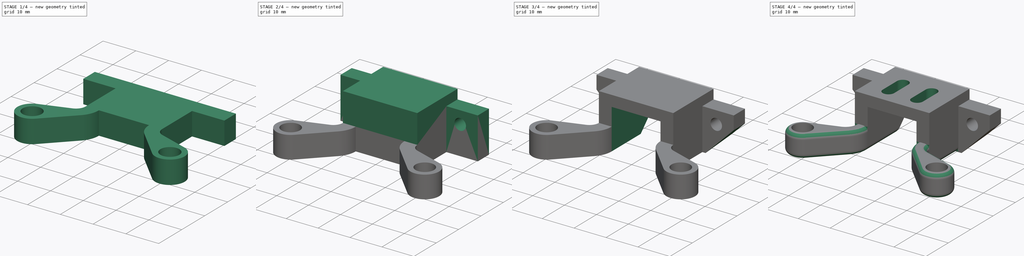
[diagram: build sequence overview — one tinted view per stage of 4, left to right]
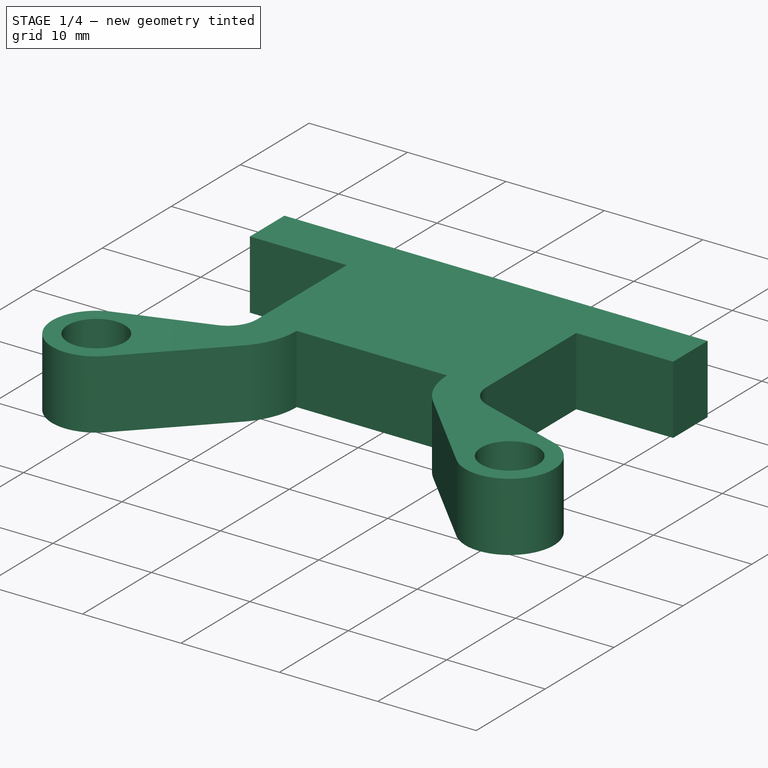
[diagram: stage 1 of 4 — iso view after this stage's code; geometry added in this stage tinted green]
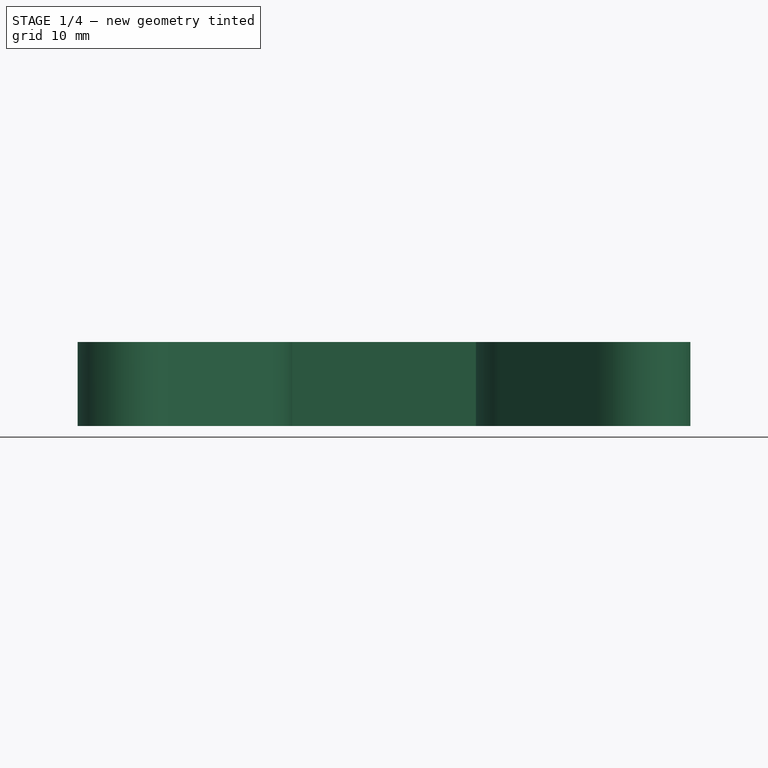
[diagram: stage 1 of 4 — front view after this stage's code; geometry added in this stage tinted green]
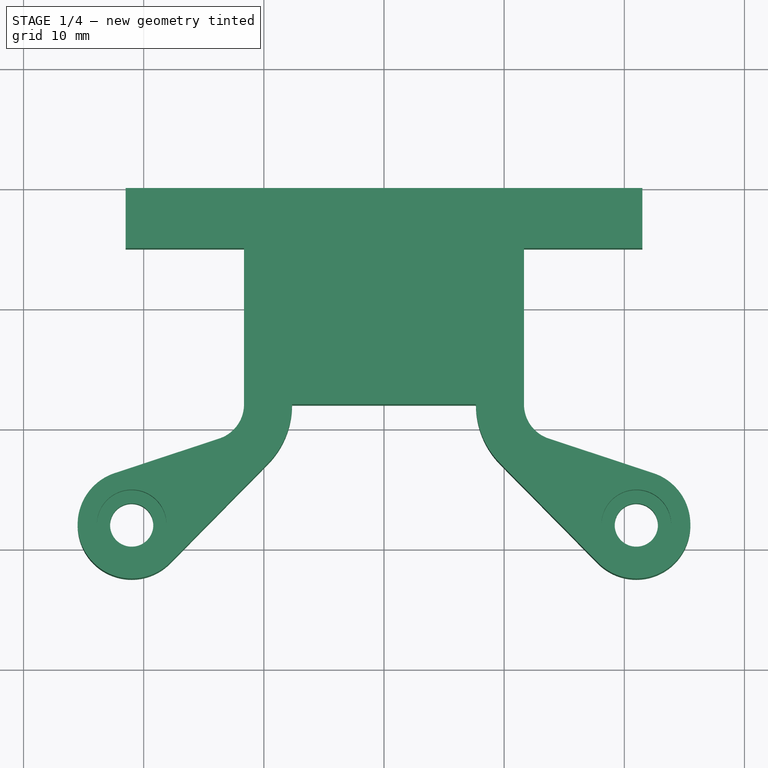
[diagram: stage 1 of 4 — top view after this stage's code; geometry added in this stage tinted green]
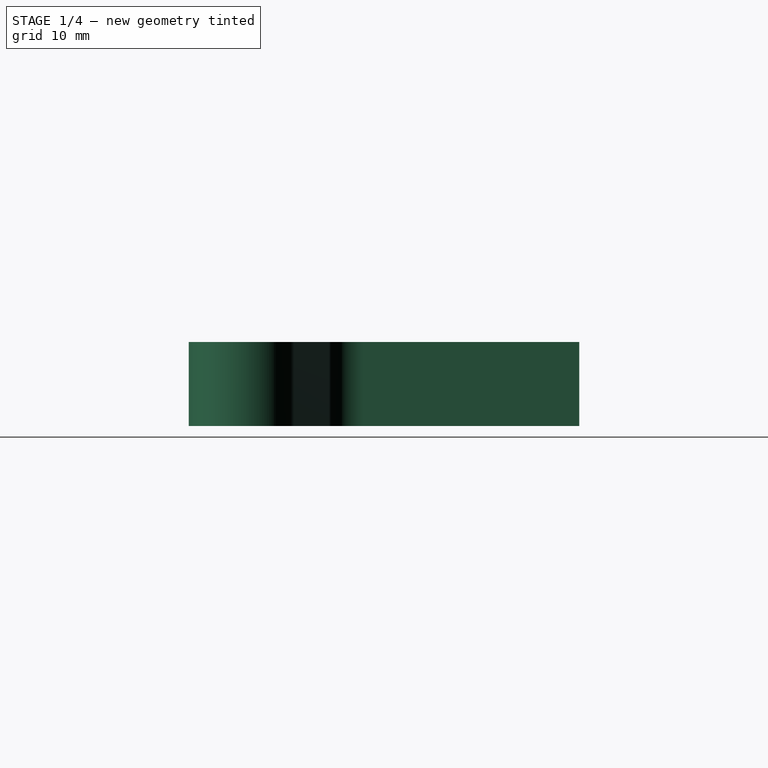
[diagram: stage 1 of 4 — right view after this stage's code; geometry added in this stage tinted green]
FCSTD DOCUMENT  (FreeCAD 1.0R39319 (Git))
Label: Dragon_GX-H15A_Rev
License: All rights reserved
LicenseURL: https://en.wikipedia.org/wiki/All_rights_reserved
objects: Sketcher::SketchObject×9, PartDesign::Pocket×6, PartDesign::Pad×3, App::VarSet×1, PartDesign::Fillet×1, PartDesign::Body×1
note: 49 computed .brp shape members not serialized (recipe doc carries the construction recipe); baked Part::Feature solids carry a one-line shape summary decoded from their .brp

FEATURE [App::VarSet] VarSet
  BaseScrewDistance = 42
  BaseScrewExternalDiameter = 9
  BaseScrewFromTop = 28
  M3HeadDiameter = 5.8
  M3HeadHeight = 3
  M3PassThroughDiameter = 3.6
  M3SelfTappingDiameter = 2.9
  SensorFixingThickness = 3.4
  SensorHeight = 16
  SensorSupportHeight = 18
  SensorWall = 4
  SensorWidth = 15.3
  StructureHeight = 7
  TopHeight = 13
  TopScrewDistance = 32
  TopScrewFromBase = 9
  TopThickness = 5
  TopWidth = 43
FEATURE [Sketcher::SketchObject] Sketch
  ArcFitTolerance = 1e-06
  AttachmentSupport = -> [XY_Plane]
  FullyConstrained = true
  MakeInternals = false
  MapMode = 5
  expr: Constraints[21] = VarSet.SensorWidth + 2 * VarSet.SensorWall
  expr: Constraints[22] = VarSet.SensorSupportHeight - VarSet.TopThickness
  expr: Constraints[25] = VarSet.M3PassThroughDiameter
  expr: Constraints[31] = VarSet.BaseScrewFromTop
  expr: Constraints[32] = VarSet.BaseScrewDistance
  expr: Constraints[36] = VarSet.BaseScrewExternalDiameter
  expr: Constraints[42] = VarSet.SensorWall
  expr: Constraints[6] = VarSet.TopWidth
  expr: Constraints[7] = VarSet.TopThickness
  sketch-geometry (27):
    g0: LineSegment StartX=-21.5 StartY=0 StartZ=0 EndX=-21.5 EndY=-5 EndZ=0
    g1: LineSegment StartX=21.5 StartY=-5 StartZ=0 EndX=21.5 EndY=0 EndZ=0
    g2: LineSegment StartX=21.5 StartY=0 StartZ=0 EndX=-21.5 EndY=0 EndZ=0
    g3: LineSegment StartX=-11.65 StartY=-5 StartZ=0 EndX=-11.65 EndY=-18 EndZ=0
    g4: LineSegment StartX=11.65 StartY=-5 StartZ=0 EndX=11.65 EndY=-18 EndZ=0
    g5: LineSegment StartX=21.5 StartY=-5 StartZ=0 EndX=11.65 EndY=-5 EndZ=0
    g6: LineSegment StartX=-21.5 StartY=-5 StartZ=0 EndX=-11.65 EndY=-5 EndZ=0
    g7: LineSegment [constr] StartX=-11.65 StartY=-5 StartZ=0 EndX=11.65 EndY=-5 EndZ=0
    g8: Circle CenterX=-21 CenterY=-28 CenterZ=0 NormalX=0 NormalY=0 NormalZ=1 AngleXU=0 Radius=1.8
    g9: Circle CenterX=21 CenterY=-28 CenterZ=0 NormalX=0 NormalY=0 NormalZ=1 AngleXU=0 Radius=1.8
    g10: LineSegment [constr] StartX=21 StartY=-28 StartZ=0 EndX=21 EndY=0 EndZ=0
    g11: LineSegment [constr] StartX=21 StartY=-28 StartZ=0 EndX=-21 EndY=-28 EndZ=0
    g12: ArcOfCircle CenterX=21 CenterY=-28 CenterZ=0 NormalX=0 NormalY=0 NormalZ=1 AngleXU=0 Radius=4.5 StartAngle=3.92 EndAngle=7.53454
    g13: ArcOfCircle CenterX=-21 CenterY=-28 CenterZ=0 NormalX=0 NormalY=0 NormalZ=1 AngleXU=0 Radius=4.5 StartAngle=1.89024 EndAngle=5.50478
    g14: LineSegment [constr] StartX=-11.65 StartY=-18 StartZ=0 EndX=-7.65 EndY=-18 EndZ=0
    g15: LineSegment [constr] StartX=11.65 StartY=-18 StartZ=0 EndX=7.65 EndY=-18 EndZ=0
    g16: LineSegment StartX=-7.65 StartY=-18 StartZ=0 EndX=7.65 EndY=-18 EndZ=0
    g17: LineSegment StartX=9.66575 StartY=-22.915 StartZ=0 EndX=17.7958 EndY=-31.1596 EndZ=0
    g18: LineSegment StartX=-9.66575 StartY=-22.915 StartZ=0 EndX=-17.7958 EndY=-31.1596 EndZ=0
    g19: LineSegment [constr] StartX=-11.65 StartY=-18 StartZ=0 EndX=-14.65 EndY=-18 EndZ=0
    g20: LineSegment [constr] StartX=11.65 StartY=-18 StartZ=0 EndX=14.65 EndY=-18 EndZ=0
    g21: ArcOfCircle CenterX=-14.65 CenterY=-18 CenterZ=0 NormalX=0 NormalY=0 NormalZ=1 AngleXU=0 Radius=3 StartAngle=5.03183 EndAngle=6.28319
    g22: ArcOfCircle CenterX=14.65 CenterY=-18 CenterZ=0 NormalX=0 NormalY=0 NormalZ=1 AngleXU=0 Radius=3 StartAngle=3.14159 EndAngle=4.39295
    g23: LineSegment StartX=-13.7079 StartY=-20.8482 StartZ=0 EndX=-22.4132 EndY=-23.7276 EndZ=0
    g24: LineSegment StartX=13.7079 StartY=-20.8482 StartZ=0 EndX=22.4132 EndY=-23.7276 EndZ=0
    g25: ArcOfCircle CenterX=-14.65 CenterY=-18 CenterZ=0 NormalX=0 NormalY=0 NormalZ=1 AngleXU=0 Radius=7 StartAngle=5.50478 EndAngle=6.28319
    g26: ArcOfCircle CenterX=14.65 CenterY=-18 CenterZ=0 NormalX=0 NormalY=0 NormalZ=1 AngleXU=0 Radius=7 StartAngle=3.14159 EndAngle=3.92
  constraints (67):
    c: Coincident(g1,g2)
    c: Coincident(g2,g0)
    c: Vertical(g0)
    c: Vertical(g1)
    c: PointOnObject(g0,g-1)
    c: Symmetric(g0,g1,g-1)
    c: Distance(g2) = 43
    c: Distance(g0) = 5
    c: Vertical(g3)
    c: Vertical(g4)
    c: Coincident(g5,g1)
    c: Horizontal(g5)
    c: Coincident(g6,g0)
    c: Horizontal(g6)
    c: Coincident(g3,g6)
    c: Coincident(g5,g4)
    c: Equal(g5,g6)
    c: Equal(g4,g3)
    c: Coincident(g7,g3)
    c: Coincident(g7,g4)
    c: Horizontal(g7)
    c: Distance(g7) = 23.3
    c: Distance(g4) = 13
    c: Symmetric(g9,g8,g-2)
    c: Equal(g9,g8)
    c: Diameter(g9) = 3.6
    c: Coincident(g10,g9)
    c: Vertical(g10)
    c: Coincident(g11,g9)
    c: Coincident(g11,g8)
    c: PointOnObject(g10,g-1)
    c: Distance(g10) = 28
    c: Distance(g11) = 42
    c: Coincident(g12,g9)
    c: Coincident(g13,g8)
    c: Equal(g12,g13)
    c: Diameter(g12) = 9
    c: Coincident(g14,g3)
    c: Horizontal(g14)
    c: Coincident(g15,g4)
    c: Horizontal(g15)
    c: Equal(g14,g15)
    c: Distance(g15) = 4
    c: Coincident(g16,g14)
    c: Coincident(g16,g15)
    c: Tangent(g17,g12) = -1.5708
    c: Tangent(g18,g13) = 1.5708
    c: Coincident(g19,g3)
    c: Horizontal(g19)
    c: Distance(g19) = 3
    c: Coincident(g20,g4)
    c: Horizontal(g20)
    c: Equal(g20,g19)
    c: Coincident(g21,g19)
    c: Coincident(g21,g3)
    c: Coincident(g22,g20)
    c: Coincident(g22,g4)
    c: Tangent(g24,g12) = 1.5708
    c: Tangent(g24,g22) = -1.5708
    c: Tangent(g23,g13) = -1.5708
    c: Tangent(g23,g21) = 1.5708
    c: Coincident(g25,g19)
    c: Coincident(g25,g14)
    c: Coincident(g26,g20)
    c: Coincident(g26,g15)
    c: Tangent(g18,g25) = 1.5708
    c: Tangent(g26,g17) = -1.5708
FEATURE [PartDesign::Pad] Pad  label="Main Structure"
  Direction = (0,0,1)
  Length = 7
  Length2 = 10
  Profile = -> Sketch
  ReferenceAxis = -> Sketch [N_Axis]
  Refine = true
  Suppressed = false
  Type = 0
  expr: Length = VarSet.StructureHeight
FEATURE [Sketcher::SketchObject] Sketch001
  ArcFitTolerance = 1e-06
  AttachmentSupport = -> [Pad]
  ExternalGeometry = -> [Pad]
  FullyConstrained = true
  MakeInternals = false
  MapMode = 5
  Placement = pos=(0,0,7) rot=(0,0,1;0rad)
  expr: Constraints[3] = VarSet.M3HeadDiameter
  sketch-geometry (2):
    g0: Circle CenterX=-21 CenterY=-28 CenterZ=0 NormalX=0 NormalY=0 NormalZ=1 AngleXU=0 Radius=2.9
    g1: Circle CenterX=21 CenterY=-28 CenterZ=0 NormalX=0 NormalY=0 NormalZ=1 AngleXU=0 Radius=2.9
  constraints (4):
    c: Coincident(g0,g-4)
    c: Coincident(g1,g-3)
    c: Equal(g1,g0)
    c: Diameter(g1) = 5.8
FEATURE [PartDesign::Pocket] Pocket  label="Base Screws Head"
  BaseFeature = -> Pad
  Direction = (0,0,-1)
  Length = 3
  Length2 = 5
  Profile = -> Sketch001
  ReferenceAxis = -> Sketch001 [N_Axis]
  Refine = true
  Suppressed = false
  Type = 0
  expr: Length = VarSet.M3HeadHeight
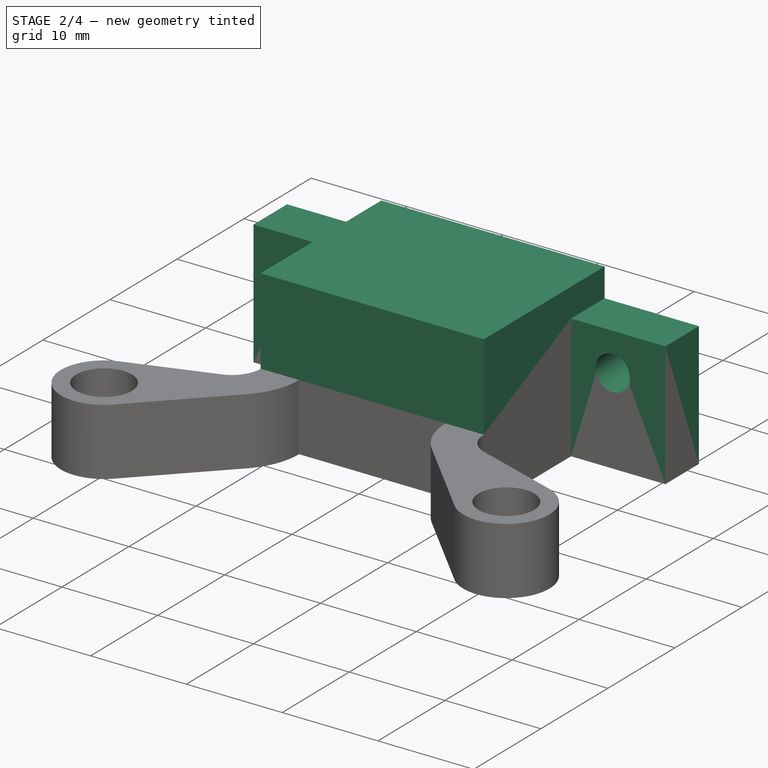
[diagram: stage 2 of 4 — iso view after this stage's code; geometry added in this stage tinted green]
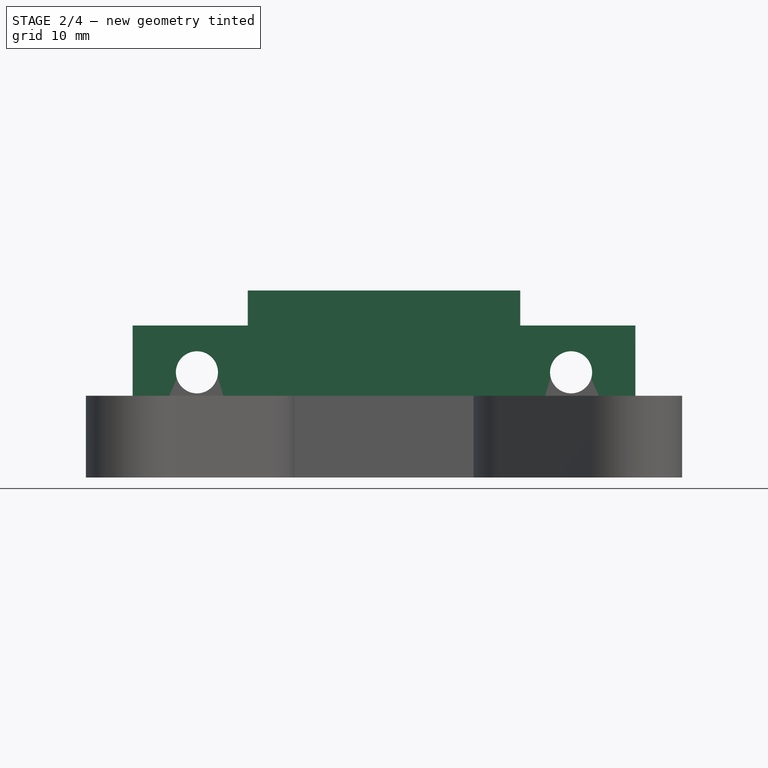
[diagram: stage 2 of 4 — front view after this stage's code; geometry added in this stage tinted green]
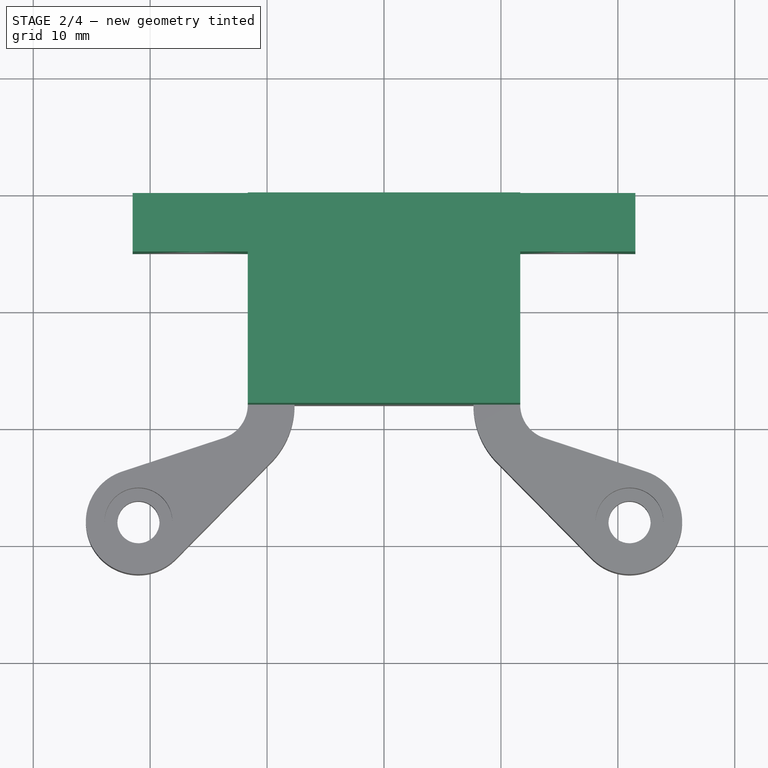
[diagram: stage 2 of 4 — top view after this stage's code; geometry added in this stage tinted green]
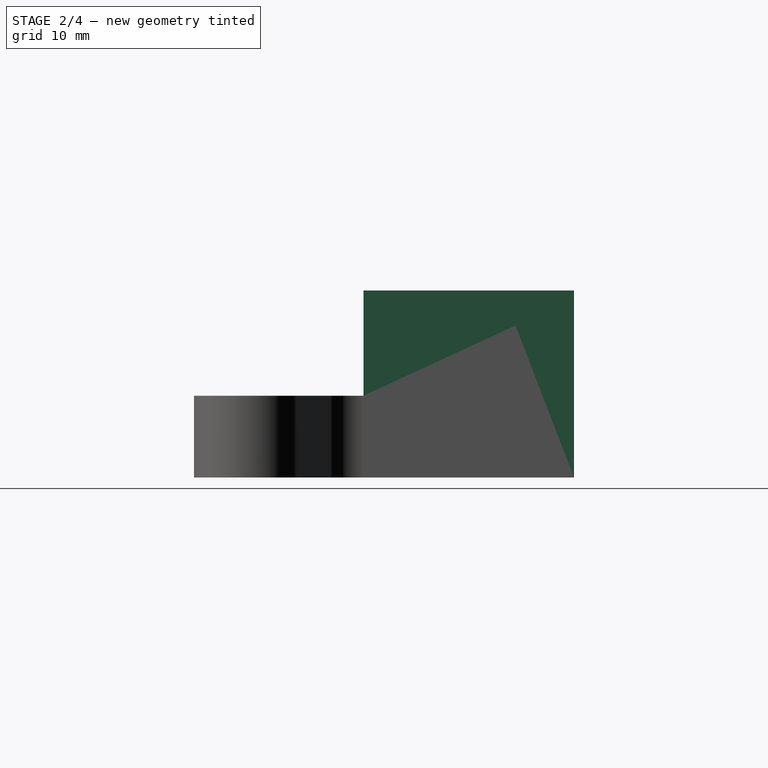
[diagram: stage 2 of 4 — right view after this stage's code; geometry added in this stage tinted green]
FEATURE [Sketcher::SketchObject] Sketch002
  ArcFitTolerance = 1e-06
  AttachmentSupport = -> [Pocket]
  ExternalGeometry = -> [Pocket]
  FullyConstrained = true
  MakeInternals = false
  MapMode = 5
  Placement = pos=(0,0,7) rot=(0,0,1;0rad)
  sketch-geometry (8):
    g0: LineSegment StartX=11.65 StartY=-5 StartZ=0 EndX=21.5 EndY=-5 EndZ=0
    g1: LineSegment StartX=21.5 StartY=-5 StartZ=0 EndX=21.5 EndY=0 EndZ=0
    g2: LineSegment StartX=21.5 StartY=0 StartZ=0 EndX=11.65 EndY=0 EndZ=0
    g3: LineSegment StartX=11.65 StartY=0 StartZ=0 EndX=11.65 EndY=-5 EndZ=0
    g4: LineSegment StartX=-11.65 StartY=-5 StartZ=0 EndX=-11.65 EndY=0 EndZ=0
    g5: LineSegment StartX=-11.65 StartY=0 StartZ=0 EndX=-21.5 EndY=0 EndZ=0
    g6: LineSegment StartX=-21.5 StartY=0 StartZ=0 EndX=-21.5 EndY=-5 EndZ=0
    g7: LineSegment StartX=-21.5 StartY=-5 StartZ=0 EndX=-11.65 EndY=-5 EndZ=0
  constraints (20):
    c: Coincident(g0,g1)
    c: Coincident(g1,g2)
    c: Coincident(g2,g3)
    c: Coincident(g3,g0)
    c: Horizontal(g2)
    c: Vertical(g1)
    c: Vertical(g3)
    c: Coincident(g0,g-4)
    c: PointOnObject(g1,g-1)
    c: Coincident(g4,g5)
    c: Coincident(g5,g6)
    c: Coincident(g6,g7)
    c: Coincident(g7,g4)
    c: Vertical(g4)
    c: Vertical(g6)
    c: Horizontal(g5)
    c: Coincident(g4,g-3)
    c: PointOnObject(g5,g-1)
    c: Coincident(g6,g-3)
    c: Coincident(g0,g-4)
FEATURE [PartDesign::Pad] Pad001  label="Top Support"
  BaseFeature = -> Pocket
  Direction = (0,0,1)
  Length = 6
  Length2 = 10
  Profile = -> Sketch002
  ReferenceAxis = -> Sketch002 [N_Axis]
  Refine = true
  Suppressed = false
  Type = 0
  expr: Length = VarSet.TopHeight - VarSet.StructureHeight
FEATURE [Sketcher::SketchObject] Sketch003
  ArcFitTolerance = 1e-06
  AttachmentSupport = -> [Pad001]
  ExternalGeometry = -> [Pad001]
  FullyConstrained = true
  MakeInternals = false
  MapMode = 5
  Placement = pos=(0,0,7) rot=(0,0,1;0rad)
  sketch-geometry (4):
    g0: LineSegment StartX=-11.65 StartY=0 StartZ=0 EndX=-11.65 EndY=-18 EndZ=0
    g1: LineSegment StartX=-11.65 StartY=-18 StartZ=0 EndX=11.65 EndY=-18 EndZ=0
    g2: LineSegment StartX=11.65 StartY=-18 StartZ=0 EndX=11.65 EndY=0 EndZ=0
    g3: LineSegment StartX=11.65 StartY=0 StartZ=0 EndX=-11.65 EndY=0 EndZ=0
  constraints (10):
    c: Coincident(g0,g1)
    c: Coincident(g1,g2)
    c: Coincident(g2,g3)
    c: Coincident(g3,g0)
    c: Vertical(g0)
    c: Vertical(g2)
    c: Horizontal(g1)
    c: Coincident(g0,g-3)
    c: Coincident(g2,g-3)
    c: PointOnObject(g-4,g1)
FEATURE [Sketcher::SketchObject] Sketch005
  ArcFitTolerance = 1e-06
  AttachmentSupport = -> [Pad001]
  FullyConstrained = true
  MakeInternals = false
  MapMode = 5
  Placement = pos=(0,0,0) rot=(0,0.707107,0.707107;3.14159rad)
  expr: Constraints[2] = VarSet.M3PassThroughDiameter
  expr: Constraints[3] = VarSet.TopScrewDistance
  expr: Constraints[4] = VarSet.TopScrewFromBase
  sketch-geometry (2):
    g0: Circle CenterX=-16 CenterY=9 CenterZ=0 NormalX=0 NormalY=0 NormalZ=1 AngleXU=0 Radius=1.8
    g1: Circle CenterX=16 CenterY=9 CenterZ=0 NormalX=0 NormalY=0 NormalZ=1 AngleXU=0 Radius=1.8
  constraints (5):
    c: Equal(g1,g0)
    c: Symmetric(g1,g0,g-2)
    c: Diameter(g1) = 3.6
    c: Distance(g0,g1) = 32
    c: DistanceY(g-1,g1) = 9
FEATURE [PartDesign::Pocket] Pocket002  label="Top Screws Holes"
  BaseFeature = -> Pad001
  Direction = (0,-1,2e-16)
  Length = 5
  Length2 = 5
  Profile = -> Sketch005
  ReferenceAxis = -> Sketch005 [N_Axis]
  Refine = true
  Suppressed = false
  Type = 0
FEATURE [PartDesign::Pad] Pad002  label="Sensor Block"
  BaseFeature = -> Pocket002
  Direction = (0,0,1)
  Length = 9
  Length2 = 10
  Profile = -> Sketch003
  ReferenceAxis = -> Sketch003 [N_Axis]
  Refine = true
  Suppressed = false
  Type = 0
  expr: Length = VarSet.SensorHeight - VarSet.StructureHeight
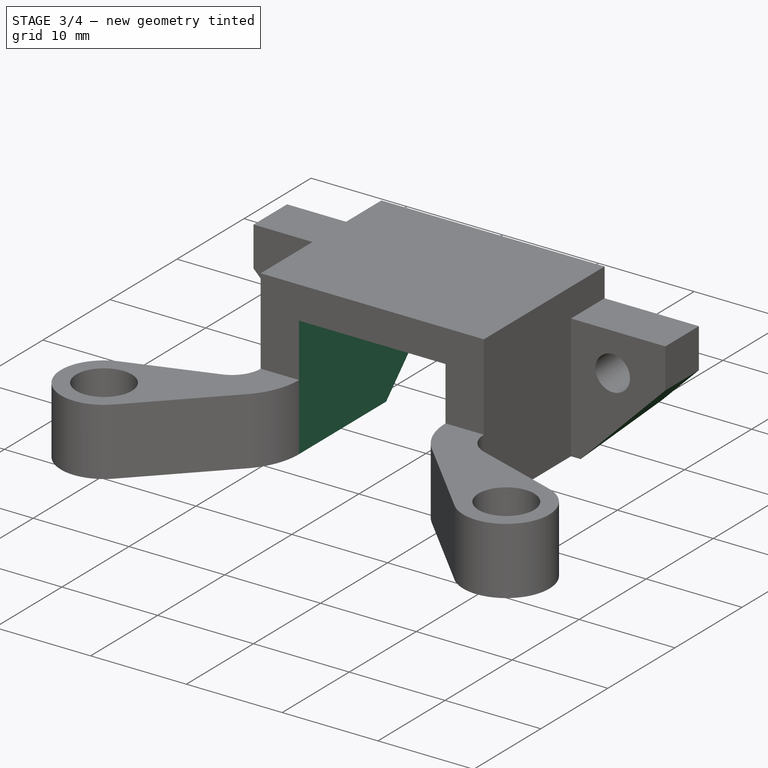
[diagram: stage 3 of 4 — iso view after this stage's code; geometry added in this stage tinted green]
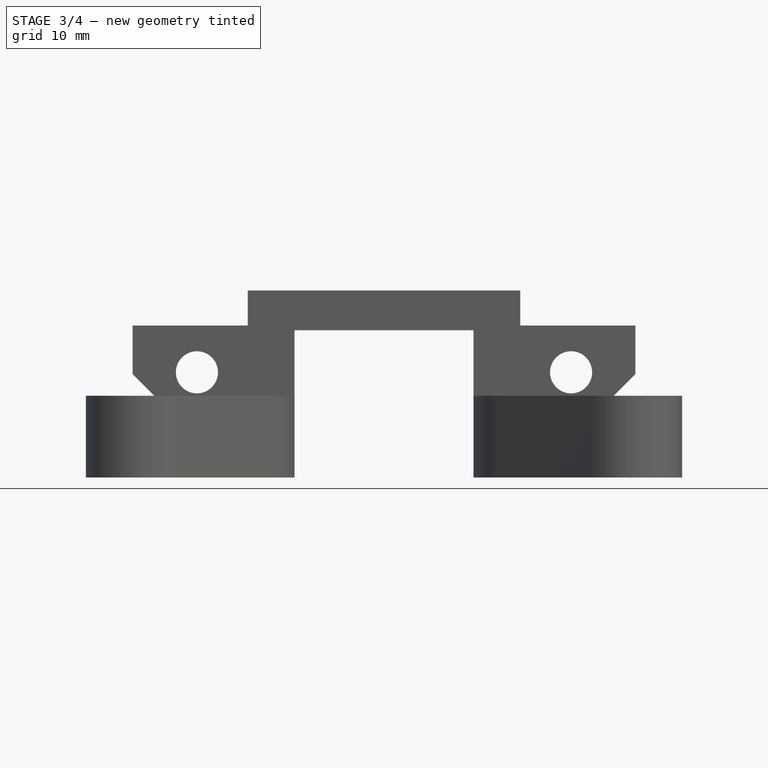
[diagram: stage 3 of 4 — front view after this stage's code; geometry added in this stage tinted green]
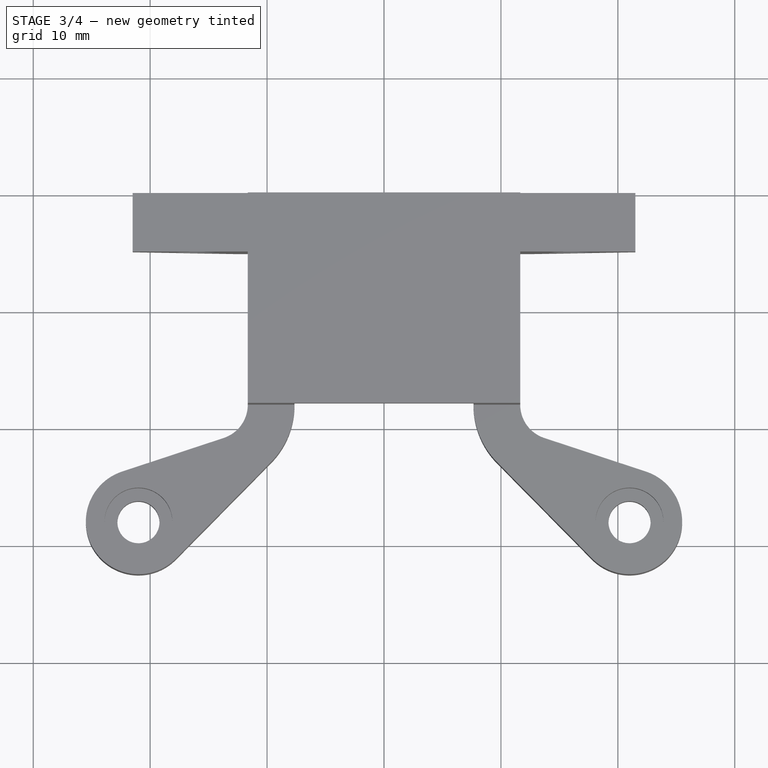
[diagram: stage 3 of 4 — top view after this stage's code; geometry added in this stage tinted green]
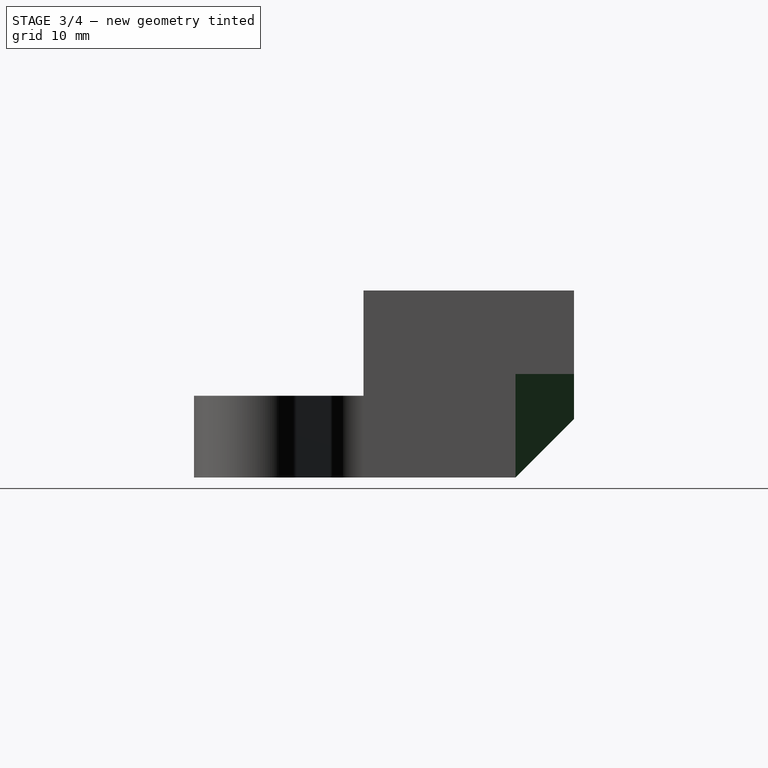
[diagram: stage 3 of 4 — right view after this stage's code; geometry added in this stage tinted green]
FEATURE [Sketcher::SketchObject] Sketch004
  ArcFitTolerance = 1e-06
  AttachmentSupport = -> [Pad002]
  ExternalGeometry = -> [Sketch]
  FullyConstrained = true
  MakeInternals = false
  MapMode = 5
  Placement = pos=(0,0,0) rot=(1,0,0;3.14159rad)
  sketch-geometry (4):
    g0: LineSegment StartX=-7.65 StartY=18 StartZ=0 EndX=-7.65 EndY=0 EndZ=0
    g1: LineSegment StartX=-7.65 StartY=0 StartZ=0 EndX=7.65 EndY=0 EndZ=0
    g2: LineSegment StartX=7.65 StartY=0 StartZ=0 EndX=7.65 EndY=18 EndZ=0
    g3: LineSegment StartX=7.65 StartY=18 StartZ=0 EndX=-7.65 EndY=18 EndZ=0
  constraints (10):
    c: Coincident(g0,g1)
    c: Coincident(g1,g2)
    c: Coincident(g2,g3)
    c: Coincident(g3,g0)
    c: Vertical(g0)
    c: Vertical(g2)
    c: Horizontal(g1)
    c: PointOnObject(g1,g-1)
    c: Coincident(g2,g-3)
    c: Coincident(g0,g-3)
FEATURE [PartDesign::Pocket] Pocket001  label="Sensor Pocket"
  BaseFeature = -> Pad002
  Direction = (0,0,1)
  Length = 12.6
  Length2 = 5
  Profile = -> Sketch004
  ReferenceAxis = -> Sketch004 [N_Axis]
  Refine = true
  Suppressed = false
  Type = 0
  expr: Length = VarSet.SensorHeight - VarSet.SensorFixingThickness
FEATURE [Sketcher::SketchObject] Sketch006
  ArcFitTolerance = 1e-06
  AttachmentSupport = -> [Pocket001]
  ExternalGeometry = -> [Pocket001]
  FullyConstrained = true
  MakeInternals = false
  MapMode = 5
  Placement = pos=(-21.5,0,0) rot=(0.57735,-0.57735,-0.57735;2.0944rad)
  sketch-geometry (3):
    g0: LineSegment StartX=5 StartY=0 StartZ=0 EndX=0 EndY=0 EndZ=0
    g1: LineSegment StartX=0 StartY=0 StartZ=0 EndX=0 EndY=5 EndZ=0
    g2: LineSegment StartX=0 StartY=5 StartZ=0 EndX=5 EndY=0 EndZ=0
  constraints (7):
    c: Coincident(g0,g-3)
    c: Coincident(g0,g-1)
    c: PointOnObject(g1,g-2)
    c: Equal(g1,g0)
    c: Coincident(g2,g1)
    c: Coincident(g2,g0)
    c: Coincident(g1,g0)
FEATURE [PartDesign::Pocket] Pocket003  label="Top Inclination"
  BaseFeature = -> Pocket001
  Direction = (1,0,0)
  Length = 5
  Length2 = 5
  Profile = -> Sketch006
  ReferenceAxis = -> Sketch006 [N_Axis]
  Refine = true
  Suppressed = false
  Type = 1
FEATURE [Sketcher::SketchObject] Sketch007
  ArcFitTolerance = 1e-06
  AttachmentSupport = -> [Pocket003]
  ExternalGeometry = -> [Sketch]
  FullyConstrained = true
  MakeInternals = false
  MapMode = 5
  Placement = pos=(0,-5,0) rot=(1,0,0;1.5708rad)
  sketch-geometry (8):
    g0: LineSegment StartX=-21.5 StartY=0 StartZ=0 EndX=-21.5 EndY=8.85 EndZ=0
    g1: LineSegment StartX=21.5 StartY=0 StartZ=0 EndX=21.5 EndY=8.85 EndZ=0
    g2: LineSegment [constr] StartX=-11.65 StartY=0 StartZ=0 EndX=-12.65 EndY=0 EndZ=0
    g3: LineSegment [constr] StartX=11.65 StartY=0 StartZ=0 EndX=12.65 EndY=0 EndZ=0
    g4: LineSegment StartX=-21.5 StartY=0 StartZ=0 EndX=-12.65 EndY=0 EndZ=0
    g5: LineSegment StartX=12.65 StartY=0 StartZ=0 EndX=21.5 EndY=0 EndZ=0
    g6: LineSegment StartX=12.65 StartY=0 StartZ=0 EndX=21.5 EndY=8.85 EndZ=0
    g7: LineSegment StartX=-21.5 StartY=8.85 StartZ=0 EndX=-12.65 EndY=0 EndZ=0
  constraints (20):
    c: Vertical(g0)
    c: Vertical(g1)
    c: Coincident(g2,g-4)
    c: PointOnObject(g2,g-4)
    c: Coincident(g3,g-3)
    c: PointOnObject(g3,g-3)
    c: Equal(g2,g3)
    c: Distance(g3) = 1
    c: Coincident(g4,g0)
    c: Coincident(g4,g2)
    c: Coincident(g5,g3)
    c: Coincident(g5,g1)
    c: Coincident(g6,g3)
    c: Coincident(g6,g1)
    c: Coincident(g1,g-3)
    c: Equal(g5,g1)
    c: Coincident(g0,g-4)
    c: Coincident(g7,g0)
    c: Coincident(g7,g2)
    c: Equal(g0,g4)
FEATURE [PartDesign::Pocket] Pocket004  label="Second Top Inclination"
  BaseFeature = -> Pocket003
  Direction = (0,1,-2e-16)
  Length = 5
  Length2 = 5
  Profile = -> Sketch007
  ReferenceAxis = -> Sketch007 [N_Axis]
  Refine = true
  Suppressed = false
  Type = 0
  expr: Length = VarSet.TopThickness
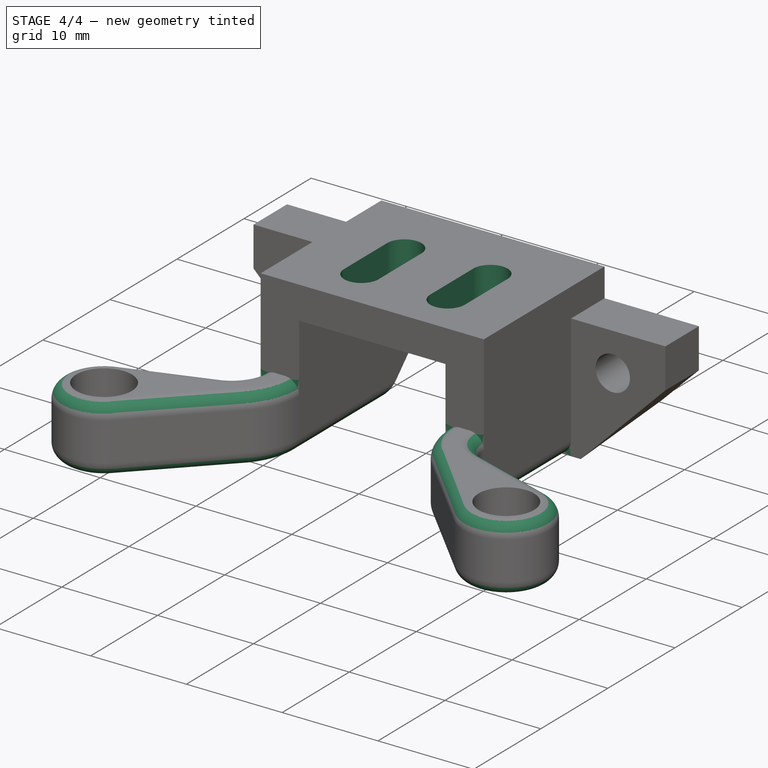
[diagram: stage 4 of 4 — iso view after this stage's code; geometry added in this stage tinted green]
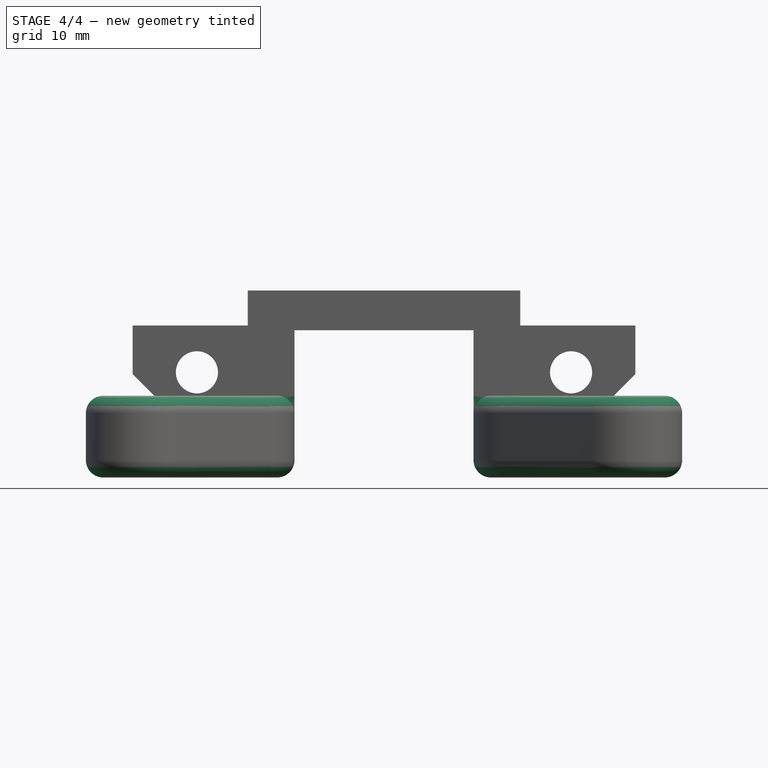
[diagram: stage 4 of 4 — front view after this stage's code; geometry added in this stage tinted green]
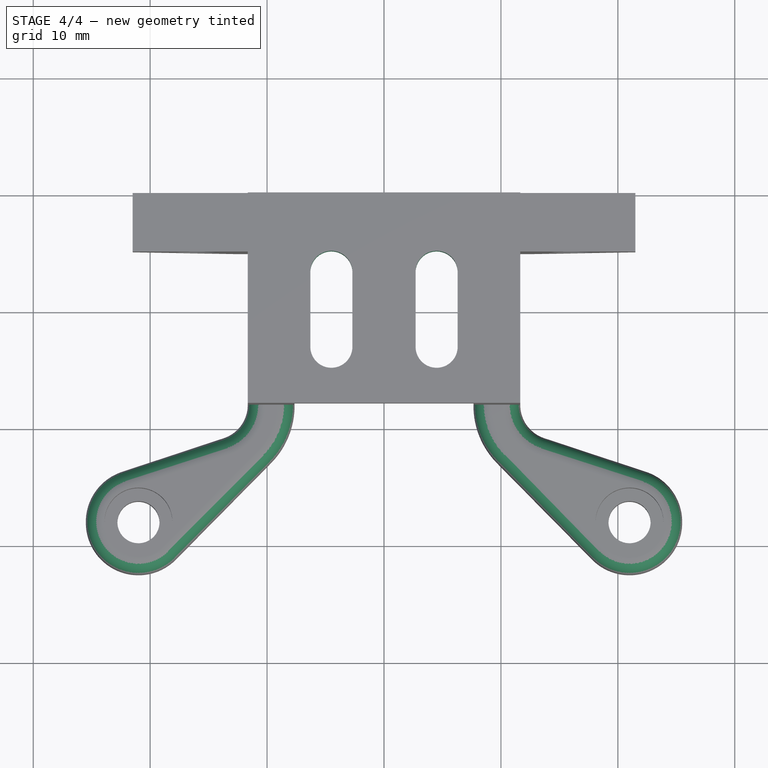
[diagram: stage 4 of 4 — top view after this stage's code; geometry added in this stage tinted green]
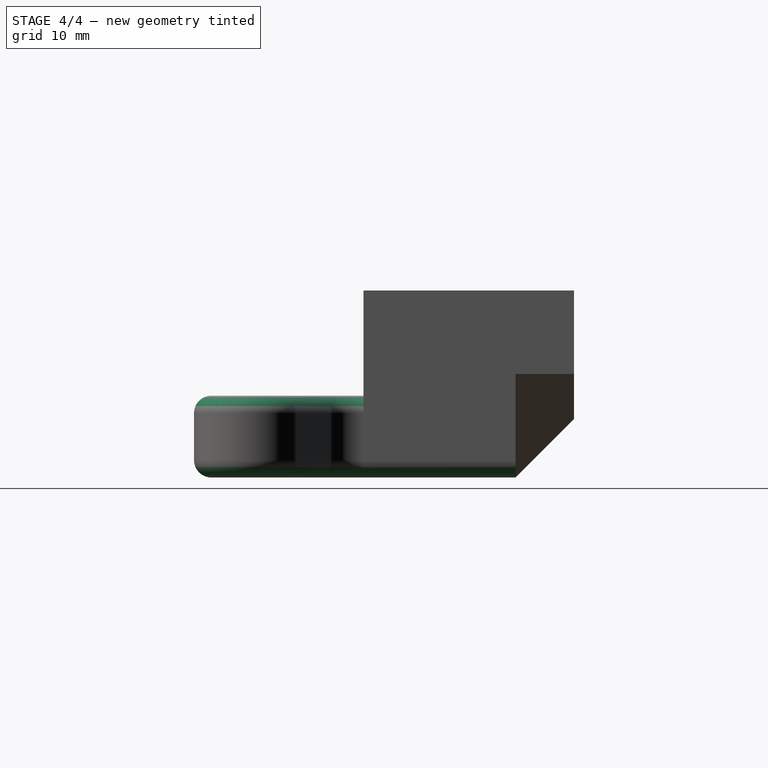
[diagram: stage 4 of 4 — right view after this stage's code; geometry added in this stage tinted green]
FEATURE [Sketcher::SketchObject] Sketch008
  ArcFitTolerance = 1e-06
  AttachmentSupport = -> [Pocket004]
  ExternalGeometry = -> [Pocket004]
  FullyConstrained = true
  MakeInternals = false
  MapMode = 5
  Placement = pos=(0,0,16) rot=(0,0,1;0rad)
  expr: Constraints[3] = VarSet.M3PassThroughDiameter
  sketch-geometry (11):
    g0: ArcOfCircle CenterX=-4.5 CenterY=-6.8 CenterZ=0 NormalX=0 NormalY=0 NormalZ=1 AngleXU=0 Radius=1.8 StartAngle=0 EndAngle=3.14159
    g1: ArcOfCircle CenterX=4.5 CenterY=-6.8 CenterZ=0 NormalX=0 NormalY=0 NormalZ=1 AngleXU=0 Radius=1.8 StartAngle=2.4117e-12 EndAngle=3.14159
    g2: ArcOfCircle CenterX=-4.5 CenterY=-13.2 CenterZ=0 NormalX=0 NormalY=0 NormalZ=1 AngleXU=0 Radius=1.8 StartAngle=3.14159 EndAngle=6.28319
    g3: ArcOfCircle CenterX=4.5 CenterY=-13.2 CenterZ=0 NormalX=0 NormalY=0 NormalZ=1 AngleXU=0 Radius=1.8 StartAngle=3.14159 EndAngle=6.28319
    g4: LineSegment StartX=-6.3 StartY=-6.8 StartZ=0 EndX=-6.3 EndY=-13.2 EndZ=0
    g5: LineSegment StartX=2.7 StartY=-6.8 StartZ=0 EndX=2.7 EndY=-13.2 EndZ=0
    g6: LineSegment StartX=-2.7 StartY=-6.8 StartZ=0 EndX=-2.7 EndY=-13.2 EndZ=0
    g7: LineSegment StartX=6.3 StartY=-6.8 StartZ=0 EndX=6.3 EndY=-13.2 EndZ=0
    g8: LineSegment [constr] StartX=-4.5 StartY=-13.2 StartZ=0 EndX=4.5 EndY=-13.2 EndZ=0
    g9: LineSegment [constr] StartX=4.5 StartY=-18 StartZ=0 EndX=4.5 EndY=-15 EndZ=0
    g10: LineSegment [constr] StartX=4.5 StartY=0 StartZ=0 EndX=4.5 EndY=-5 EndZ=0
  constraints (31):
    c: Equal(g3,g2)
    c: Equal(g2,g0)
    c: Equal(g0,g1)
    c: Diameter(g1) = 3.6
    c: Vertical(g4)
    c: Vertical(g5)
    c: Tangent(g3,g5) = -1.5708
    c: Tangent(g5,g1) = -1.5708
    c: Tangent(g4,g2) = -1.5708
    c: Tangent(g4,g0) = -1.5708
    c: Equal(g5,g4)
    c: Equal(g4,g6)
    c: Coincident(g6,g2)
    c: Tangent(g6,g0) = 1.5708
    c: Tangent(g7,g1) = 1.5708
    c: Equal(g5,g7)
    c: Coincident(g3,g7)
    c: Coincident(g8,g2)
    c: Coincident(g8,g3)
    c: Distance(g8) = 9
    c: PointOnObject(g9,g3)
    c: Vertical(g9)
    c: Perpendicular(g3,g9)
    c: Distance(g9) = 3
    c: PointOnObject(g10,g-1)
    c: Vertical(g10)
    c: PointOnObject(g10,g1)
    c: Perpendicular(g1,g10)
    c: Symmetric(g3,g2,g-2)
    c: Distance(g10) = 5
    c: PointOnObject(g9,g-3)
FEATURE [PartDesign::Pocket] Pocket005  label="Fixing Screws Channels"
  BaseFeature = -> Pocket004
  Direction = (0,0,-1)
  Length = 5
  Length2 = 5
  Profile = -> Sketch008
  ReferenceAxis = -> Sketch008 [N_Axis]
  Refine = true
  Suppressed = false
  Type = 1
FEATURE [PartDesign::Fillet] Fillet  label="Roundings"
  Base = -> Pocket005 [Edge74,Edge39,Edge105,Edge92]
  BaseFeature = -> Pocket005
  Radius = 1.5
  Refine = true
  SupportTransform = false
  Suppressed = false
  UseAllEdges = false
FEATURE [PartDesign::Body] Body
  AllowCompound = false
  Group = -> [Sketch,Pad,Sketch001,Pocket,Sketch002,Pad001,Pocket002,Sketch005,Sketch003,Pad002,Sketch004,Pocket001,Sketch006,Pocket003,Sketch007,Pocket004,Sketch008,Pocket005,Fillet]
  Origin = -> Origin
  Tip = -> Fillet
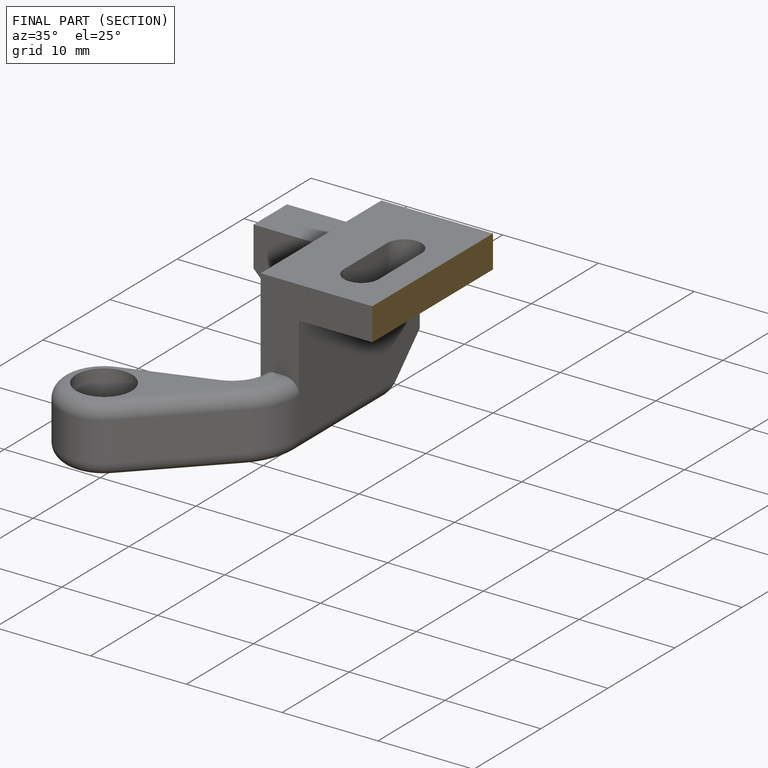
[diagram: finished part — half-section view (interior)]
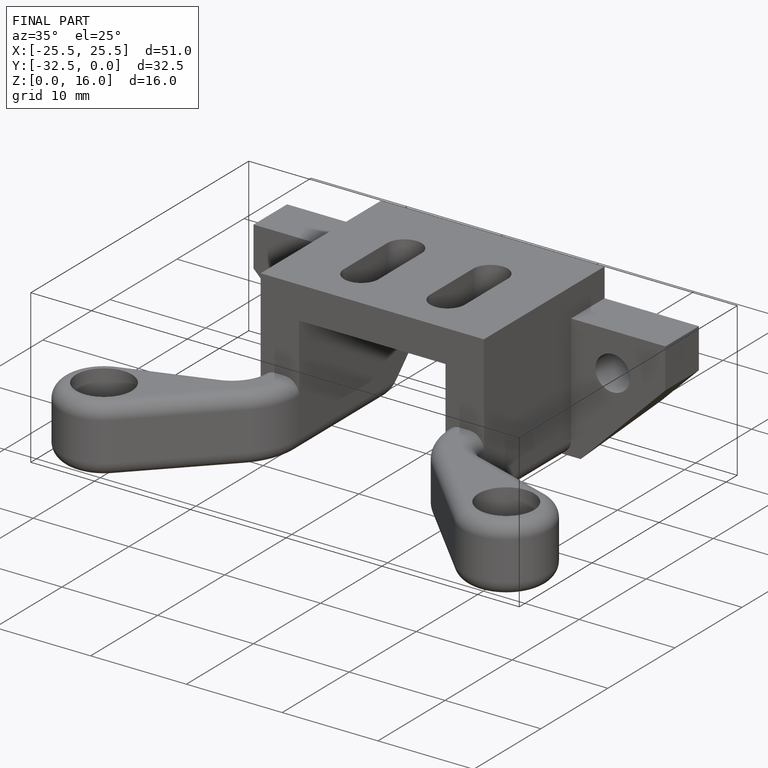
[diagram: finished part — iso view with bounding-box wireframe]
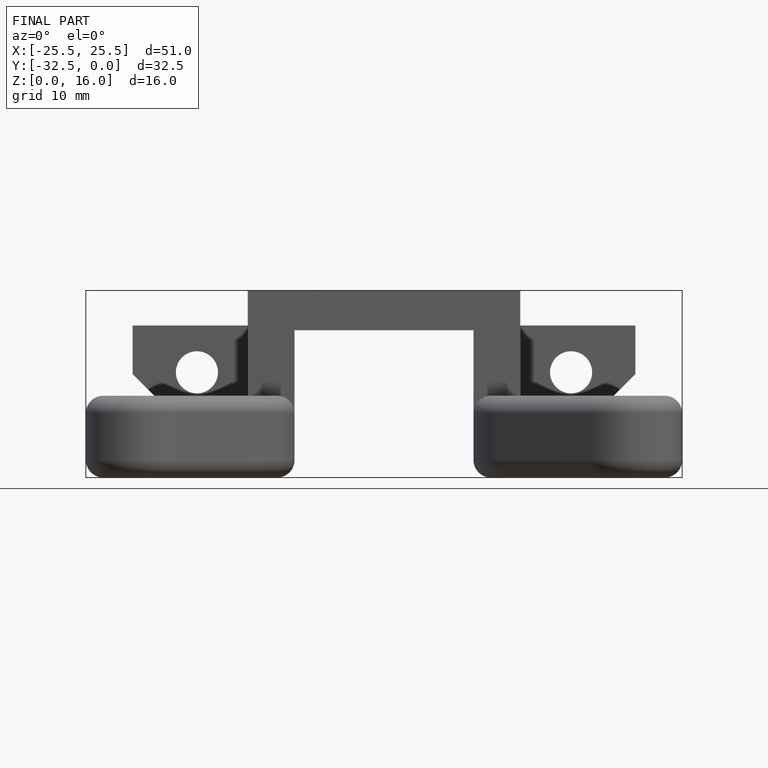
[diagram: finished part — front view with bounding-box wireframe]
